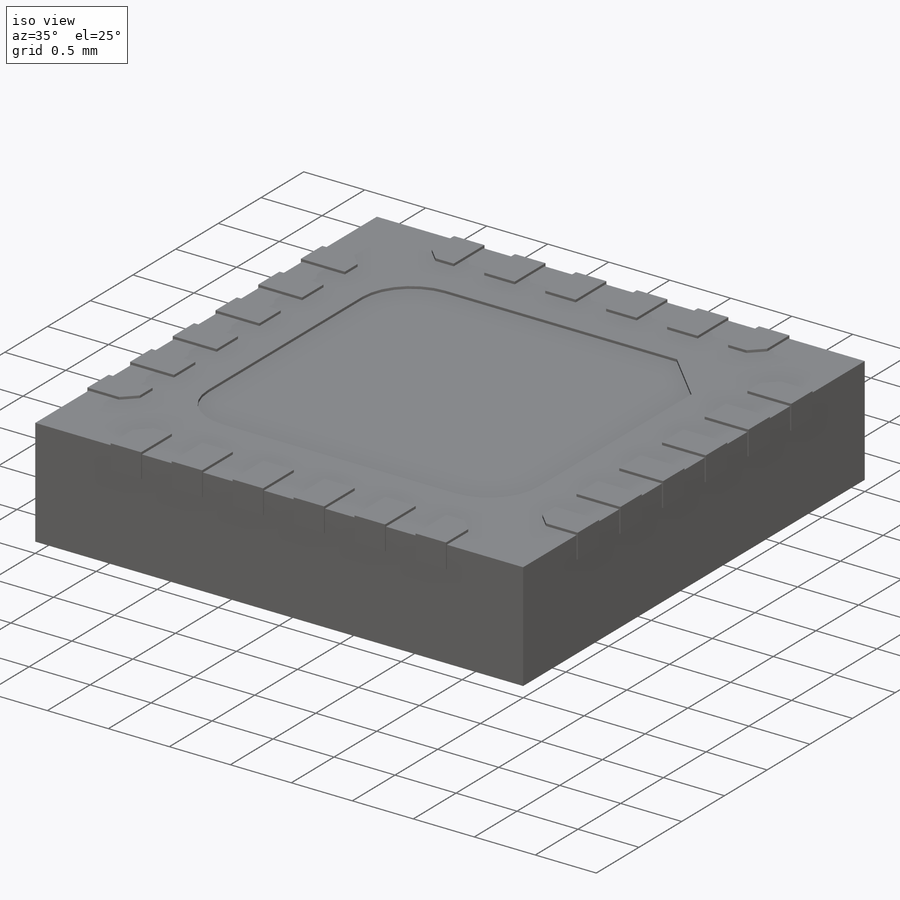
[diagram: iso view]
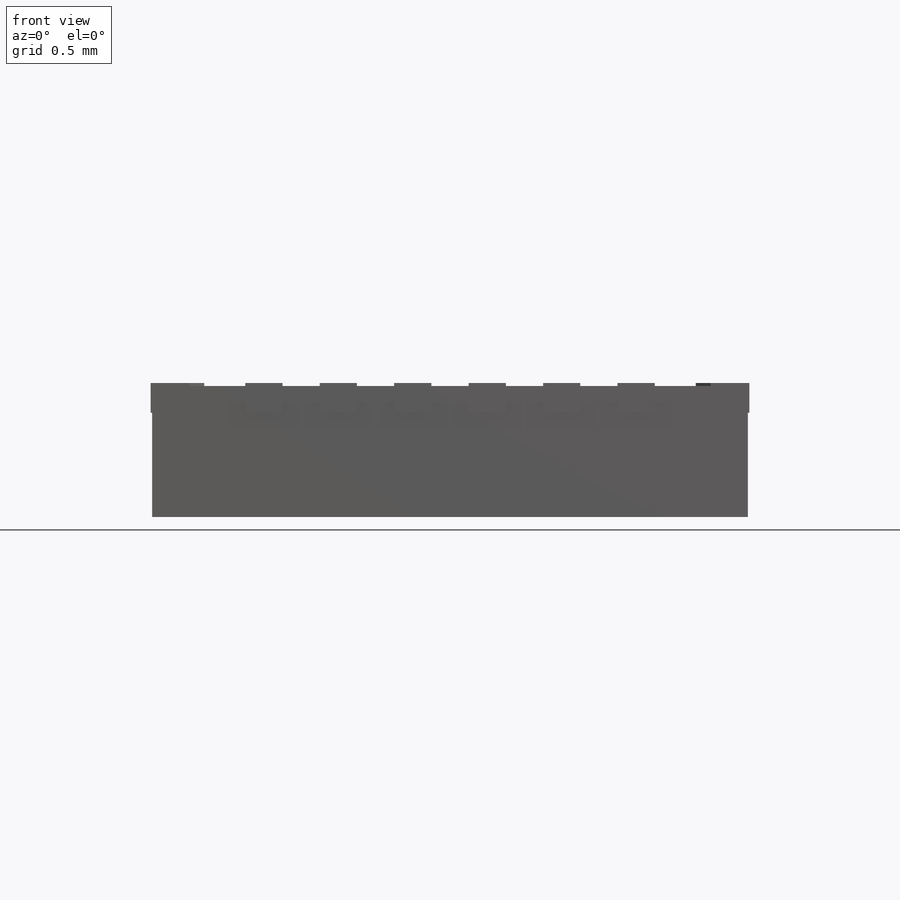
[diagram: front view]
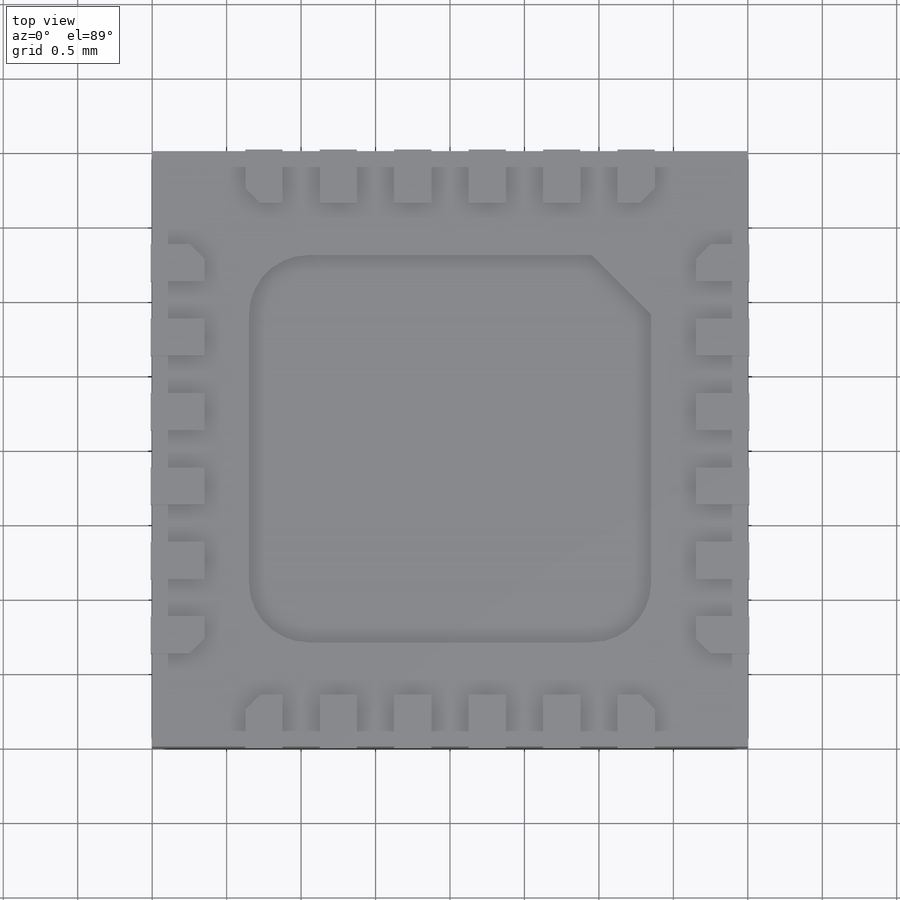
[diagram: top view]
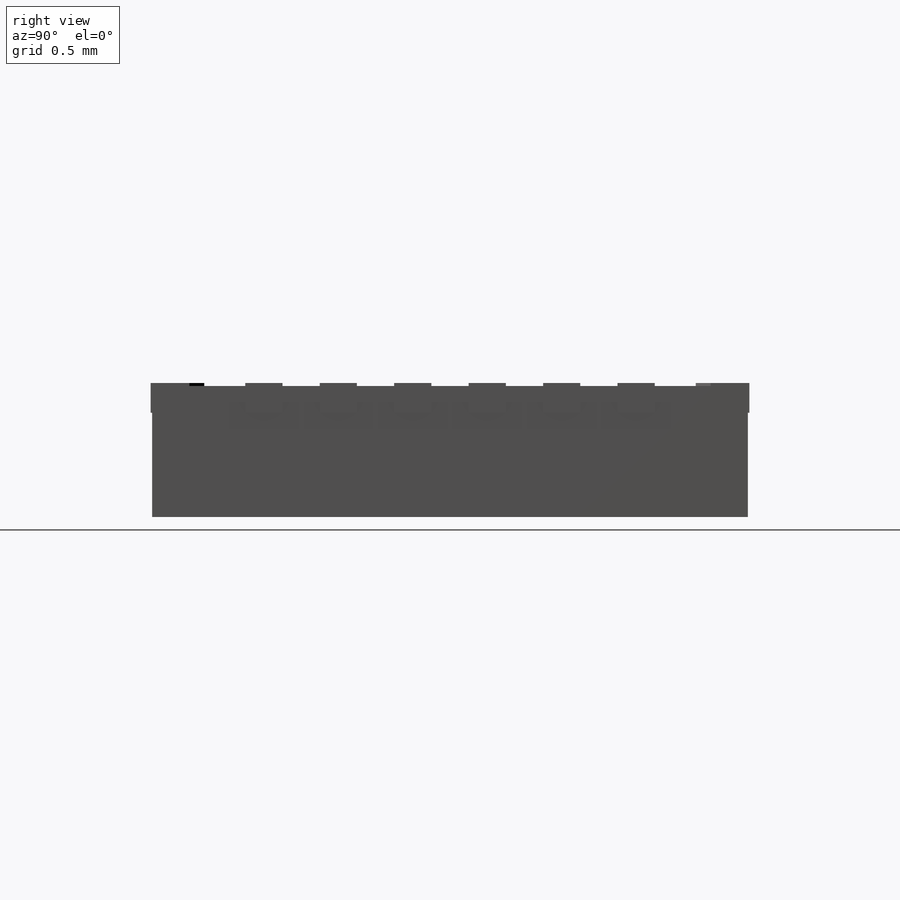
[diagram: right view]
SOLIDWORKS PART (.sldprt)
format: sldprt  version: not decoded by parser v0  size: 359,936 bytes
history: native  units: mm
features: sketch x4, extrude x2, cut_extrude x2, material x1 (+11 scaffold rows collapsed)
feature tree (20):
  scaffold x11  (default folders/planes/origin — collapsed)
  material  "Material <not specified>"
  sketch  "Sketch1"  dims[D1=4.0mm D2=4.0mm D3=2.0mm D4=2.0mm]
  extrude  "Boss-Extrude1"  Depth=0.88mm
  sketch  "Sketch2"  dims[c1.D1=0.35mm c1.D2=0.25mm c1.D4=0.125mm c1.D5=0.35mm c1.D6=0.25mm c1.D8=0.125mm c1.D9=0.1mm c1.D10=0.1mm c2.D9=0.1mm c2.D10=0.1mm c2.D11=0.1mm c2.D12=0.1mm c2.D13=0.1mm c2.D14=0.1mm c3.D13=0.1mm c3.D14=0.1mm c3.D15=0.1mm c3.D16=0.1mm c3.D17=0.1mm c3.D18=0.1mm c3.D19=0.1mm c3.D20=0.1mm c3.D21=0.1mm c3.D22=0.1mm c3.D1=0.01mm c3.D2=0.01mm c3.D3=6.0 c3.D7=6.0]
  extrude  "Boss-Extrude3"  Depth=0.02mm
  sketch  "Sketch3"  dims[D5=0.4mm D1=2.7mm D2=2.6mm D3=1.35mm D4=1.3mm]
  cut_extrude  "Cut-Extrude1"  Depth=0.02mm
  sketch  "Sketch4"  dims[D1=0.2mm D2=0.5mm D3=0.5mm]
  cut_extrude  "Cut-Extrude2"  Depth=0.02mm
decode coverage: 8 of 8 modeling features carry decoded parameters
note: suppression state not decoded; provenance and decode notes live in map.json
